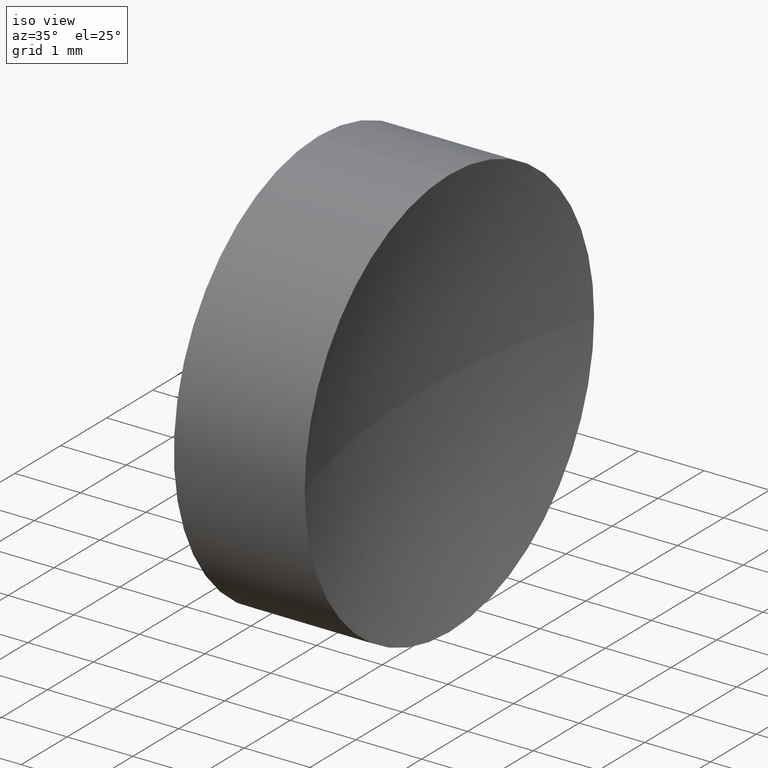
[diagram: clean part render]
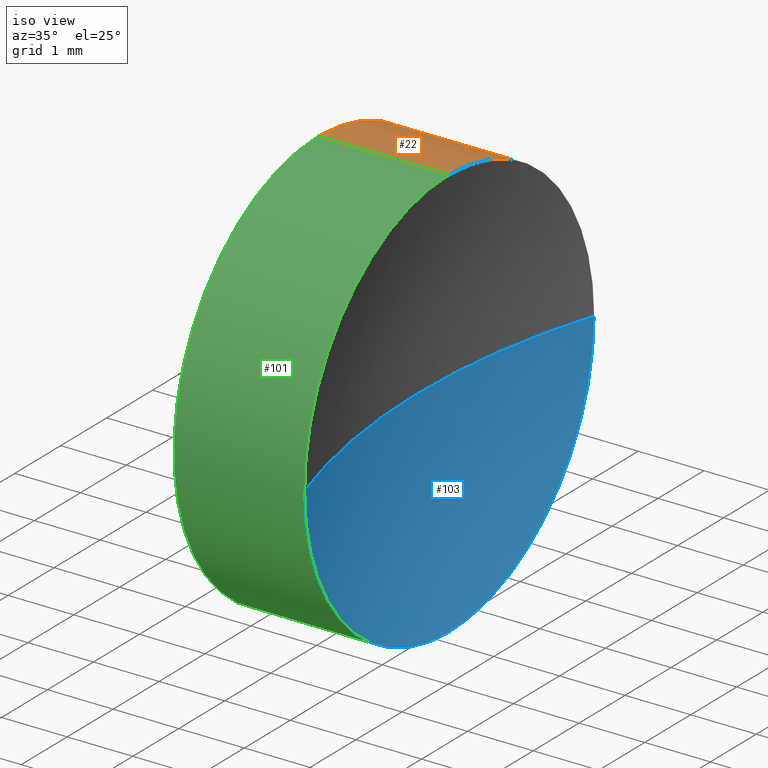
[diagram: same view with three faces highlighted in distinct colors, each labeled with its STEP entity id]
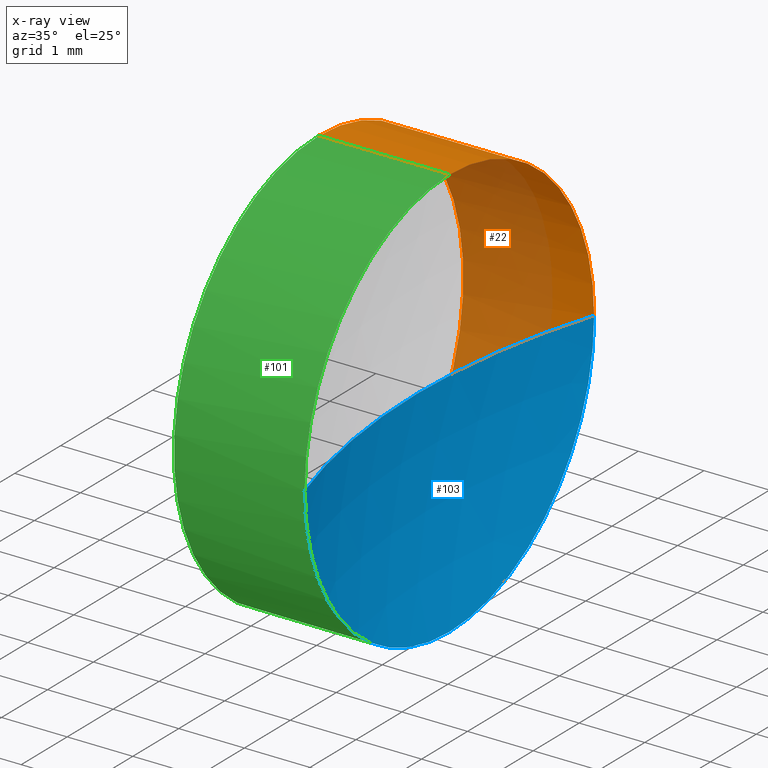
[diagram: x-ray of the same camera — body ghosted, the three highlighted faces saturated]
A machine part, iso view with three faces highlighted in distinct colors.
The next image is the same camera in x-ray (body ghosted, the three faces saturated) — at least one of them is partly hidden behind the body in this view.
Their STEP definitions:

[orange] entity #22 — the highlighted cylindrical surface (partial cylindrical patch) has radius 3.15 mm, axis along (-1, -0, -0).
#1 = ORIENTED_EDGE ( 'NONE', *, *, #137, .F. ) ;
#5 = DIRECTION ( 'NONE',  ( 0.0000000000000000000, 0.0000000000000000000, 1.000000000000000000 ) ) ;
#11 = VERTEX_POINT ( 'NONE', #36 ) ;
#12 = EDGE_CURVE ( 'NONE', #88, #11, #107, .T. ) ;
#13 = FACE_OUTER_BOUND ( 'NONE', #152, .T. ) ;
#16 = DIRECTION ( 'NONE',  ( 0.0000000000000000000, 0.0000000000000000000, 1.000000000000000000 ) ) ;
#20 = EDGE_CURVE ( 'NONE', #78, #88, #104, .T. ) ;
#22 = ADVANCED_FACE ( 'NONE', ( #13 ), #80, .T. ) ;
#23 = AXIS2_PLACEMENT_3D ( 'NONE', #51, #129, #5 ) ;
#25 = ORIENTED_EDGE ( 'NONE', *, *, #20, .T. ) ;
#27 = CARTESIAN_POINT ( 'NONE',  ( 24.30126090413694200, 13.03112609140304000, 0.0000000000000000000 ) ) ;
#32 = DIRECTION ( 'NONE',  ( 0.0000000000000000000, 0.0000000000000000000, 1.000000000000000000 ) ) ;
#36 = CARTESIAN_POINT ( 'NONE',  ( 22.30926883257449200, 13.03112609140304000, -3.149999999999998100 ) ) ;
#37 = CARTESIAN_POINT ( 'NONE',  ( 20.68403063513288800, 13.03112609140304000, 0.0000000000000000000 ) ) ;
#38 = VECTOR ( 'NONE', #123, 1000.000000000000000 ) ;
#45 = CARTESIAN_POINT ( 'NONE',  ( 20.68403063513288800, 13.03112609140304000, 3.149999999999999900 ) ) ;
#51 = CARTESIAN_POINT ( 'NONE',  ( 24.30126090413694200, 13.03112609140304000, 0.0000000000000000000 ) ) ;
#54 = DIRECTION ( 'NONE',  ( -1.000000000000000000, -0.0000000000000000000, -0.0000000000000000000 ) ) ;
#58 = EDGE_CURVE ( 'NONE', #70, #78, #98, .T. ) ;
#59 = DIRECTION ( 'NONE',  ( -1.000000000000000000, -0.0000000000000000000, -0.0000000000000000000 ) ) ;
#61 = AXIS2_PLACEMENT_3D ( 'NONE', #37, #66, #16 ) ;
#62 = LINE ( 'NONE', #45, #95 ) ;
#66 = DIRECTION ( 'NONE',  ( -1.000000000000000000, -0.0000000000000000000, -0.0000000000000000000 ) ) ;
#70 = VERTEX_POINT ( 'NONE', #100 ) ;
#78 = VERTEX_POINT ( 'NONE', #157 ) ;
#80 = CYLINDRICAL_SURFACE ( 'NONE', #61, 3.149999999999999900 ) ;
#83 = AXIS2_PLACEMENT_3D ( 'NONE', #163, #89, #32 ) ;
#84 = CARTESIAN_POINT ( 'NONE',  ( 20.68403063513288800, 13.03112609140304000, -3.149999999999999900 ) ) ;
#85 = ORIENTED_EDGE ( 'NONE', *, *, #58, .T. ) ;
#86 = CARTESIAN_POINT ( 'NONE',  ( 24.30126090413694200, 13.03112609140304000, -3.150000000000001200 ) ) ;
#88 = VERTEX_POINT ( 'NONE', #86 ) ;
#89 = DIRECTION ( 'NONE',  ( -1.000000000000000000, -0.0000000000000000000, -0.0000000000000000000 ) ) ;
#95 = VECTOR ( 'NONE', #59, 1000.000000000000000 ) ;
#96 = VERTEX_POINT ( 'NONE', #153 ) ;
#98 = CIRCLE ( 'NONE', #150, 3.150000000000001700 ) ;
#100 = CARTESIAN_POINT ( 'NONE',  ( 24.30126090413694200, 13.03112609140304000, 3.150000000000001200 ) ) ;
#104 = CIRCLE ( 'NONE', #23, 3.150000000000001700 ) ;
#107 = LINE ( 'NONE', #84, #38 ) ;
#121 = ORIENTED_EDGE ( 'NONE', *, *, #12, .T. ) ;
#123 = DIRECTION ( 'NONE',  ( -1.000000000000000000, -0.0000000000000000000, -0.0000000000000000000 ) ) ;
#129 = DIRECTION ( 'NONE',  ( -1.000000000000000000, -0.0000000000000000000, -0.0000000000000000000 ) ) ;
#135 = CIRCLE ( 'NONE', #83, 3.149999999999998100 ) ;
#137 = EDGE_CURVE ( 'NONE', #70, #96, #62, .T. ) ;
#146 = ORIENTED_EDGE ( 'NONE', *, *, #167, .F. ) ;
#150 = AXIS2_PLACEMENT_3D ( 'NONE', #27, #54, #156 ) ;
#152 = EDGE_LOOP ( 'NONE', ( #25, #121, #146, #1, #85 ) ) ;
#153 = CARTESIAN_POINT ( 'NONE',  ( 22.30926883257449200, 13.03112609140304000, 3.149999999999998100 ) ) ;
#156 = DIRECTION ( 'NONE',  ( 0.0000000000000000000, 0.0000000000000000000, 1.000000000000000000 ) ) ;
#157 = CARTESIAN_POINT ( 'NONE',  ( 24.30126090413694200, 16.18112609140304100, 3.857637417314157300E-016 ) ) ;
#163 = CARTESIAN_POINT ( 'NONE',  ( 22.30926883257449200, 13.03112609140304000, 0.0000000000000000000 ) ) ;
#167 = EDGE_CURVE ( 'NONE', #96, #11, #135, .T. ) ;

[blue] entity #103 — the highlighted spherical surface has radius 10.33 mm.
#2 = CARTESIAN_POINT ( 'NONE',  ( 34.13926883257448700, 13.03112609140304900, 0.0000000000000000000 ) ) ;
#4 = ORIENTED_EDGE ( 'NONE', *, *, #108, .F. ) ;
#5 = DIRECTION ( 'NONE',  ( 0.0000000000000000000, 0.0000000000000000000, 1.000000000000000000 ) ) ;
#8 = DIRECTION ( 'NONE',  ( 0.0000000000000000000, -1.000000000000000000, 0.0000000000000000000 ) ) ;
#14 = CIRCLE ( 'NONE', #125, 10.32999999999999800 ) ;
#20 = EDGE_CURVE ( 'NONE', #78, #88, #104, .T. ) ;
#23 = AXIS2_PLACEMENT_3D ( 'NONE', #51, #129, #5 ) ;
#24 = CARTESIAN_POINT ( 'NONE',  ( 34.13926883257448700, 13.03112609140304900, 0.0000000000000000000 ) ) ;
#26 = EDGE_CURVE ( 'NONE', #182, #69, #14, .T. ) ;
#30 = DIRECTION ( 'NONE',  ( 0.0000000000000000000, -1.000000000000000000, -1.224646799147353200E-016 ) ) ;
#43 = EDGE_CURVE ( 'NONE', #78, #69, #133, .T. ) ;
#44 = DIRECTION ( 'NONE',  ( -1.000000000000000000, -0.0000000000000000000, -0.0000000000000000000 ) ) ;
#48 = ORIENTED_EDGE ( 'NONE', *, *, #43, .T. ) ;
#51 = CARTESIAN_POINT ( 'NONE',  ( 24.30126090413694200, 13.03112609140304000, 0.0000000000000000000 ) ) ;
#52 = SPHERICAL_SURFACE ( 'NONE', #94, 10.32999999999999800 ) ;
#55 = DIRECTION ( 'NONE',  ( 0.0000000000000000000, 0.0000000000000000000, 1.000000000000000000 ) ) ;
#69 = VERTEX_POINT ( 'NONE', #72 ) ;
#72 = CARTESIAN_POINT ( 'NONE',  ( 23.80926883257448900, 13.03112609140304900, 0.0000000000000000000 ) ) ;
#74 = CARTESIAN_POINT ( 'NONE',  ( 24.30126090413694200, 13.03112609140304000, 0.0000000000000000000 ) ) ;
#78 = VERTEX_POINT ( 'NONE', #157 ) ;
#79 = CIRCLE ( 'NONE', #99, 3.150000000000001700 ) ;
#86 = CARTESIAN_POINT ( 'NONE',  ( 24.30126090413694200, 13.03112609140304000, -3.150000000000001200 ) ) ;
#88 = VERTEX_POINT ( 'NONE', #86 ) ;
#94 = AXIS2_PLACEMENT_3D ( 'NONE', #24, #55, #8 ) ;
#99 = AXIS2_PLACEMENT_3D ( 'NONE', #74, #44, #131 ) ;
#103 = ADVANCED_FACE ( 'NONE', ( #172 ), #52, .F. ) ;
#104 = CIRCLE ( 'NONE', #23, 3.150000000000001700 ) ;
#108 = EDGE_CURVE ( 'NONE', #88, #182, #79, .T. ) ;
#109 = EDGE_LOOP ( 'NONE', ( #136, #48, #155, #4 ) ) ;
#114 = CARTESIAN_POINT ( 'NONE',  ( 34.13926883257448700, 13.03112609140304900, 0.0000000000000000000 ) ) ;
#125 = AXIS2_PLACEMENT_3D ( 'NONE', #2, #126, #141 ) ;
#126 = DIRECTION ( 'NONE',  ( 0.0000000000000000000, 0.0000000000000000000, -1.000000000000000000 ) ) ;
#129 = DIRECTION ( 'NONE',  ( -1.000000000000000000, -0.0000000000000000000, -0.0000000000000000000 ) ) ;
#131 = DIRECTION ( 'NONE',  ( 0.0000000000000000000, 0.0000000000000000000, 1.000000000000000000 ) ) ;
#133 = CIRCLE ( 'NONE', #147, 10.32999999999999800 ) ;
#136 = ORIENTED_EDGE ( 'NONE', *, *, #20, .F. ) ;
#141 = DIRECTION ( 'NONE',  ( -1.000000000000000000, 0.0000000000000000000, 0.0000000000000000000 ) ) ;
#147 = AXIS2_PLACEMENT_3D ( 'NONE', #114, #174, #30 ) ;
#155 = ORIENTED_EDGE ( 'NONE', *, *, #26, .F. ) ;
#157 = CARTESIAN_POINT ( 'NONE',  ( 24.30126090413694200, 16.18112609140304100, 3.857637417314157300E-016 ) ) ;
#172 = FACE_OUTER_BOUND ( 'NONE', #109, .T. ) ;
#174 = DIRECTION ( 'NONE',  ( 0.0000000000000000000, -1.224646799147353200E-016, 1.000000000000000000 ) ) ;
#179 = CARTESIAN_POINT ( 'NONE',  ( 24.30126090413694200, 9.881126091403045200, 0.0000000000000000000 ) ) ;
#182 = VERTEX_POINT ( 'NONE', #179 ) ;

[green] entity #101 — the highlighted cylindrical surface (partial cylindrical patch) has radius 3.15 mm, axis along (-1, -0, -0).
#11 = VERTEX_POINT ( 'NONE', #36 ) ;
#12 = EDGE_CURVE ( 'NONE', #88, #11, #107, .T. ) ;
#36 = CARTESIAN_POINT ( 'NONE',  ( 22.30926883257449200, 13.03112609140304000, -3.149999999999998100 ) ) ;
#38 = VECTOR ( 'NONE', #123, 1000.000000000000000 ) ;
#39 = EDGE_CURVE ( 'NONE', #182, #70, #60, .T. ) ;
#40 = CARTESIAN_POINT ( 'NONE',  ( 24.30126090413694200, 13.03112609140304000, 0.0000000000000000000 ) ) ;
#41 = DIRECTION ( 'NONE',  ( -1.000000000000000000, -0.0000000000000000000, -0.0000000000000000000 ) ) ;
#44 = DIRECTION ( 'NONE',  ( -1.000000000000000000, -0.0000000000000000000, -0.0000000000000000000 ) ) ;
#45 = CARTESIAN_POINT ( 'NONE',  ( 20.68403063513288800, 13.03112609140304000, 3.149999999999999900 ) ) ;
#46 = EDGE_LOOP ( 'NONE', ( #106, #173, #111, #149, #122 ) ) ;
#56 = DIRECTION ( 'NONE',  ( -1.000000000000000000, -0.0000000000000000000, -0.0000000000000000000 ) ) ;
#59 = DIRECTION ( 'NONE',  ( -1.000000000000000000, -0.0000000000000000000, -0.0000000000000000000 ) ) ;
#60 = CIRCLE ( 'NONE', #134, 3.150000000000001700 ) ;
#62 = LINE ( 'NONE', #45, #95 ) ;
#64 = CIRCLE ( 'NONE', #71, 3.149999999999998100 ) ;
#70 = VERTEX_POINT ( 'NONE', #100 ) ;
#71 = AXIS2_PLACEMENT_3D ( 'NONE', #140, #138, #175 ) ;
#74 = CARTESIAN_POINT ( 'NONE',  ( 24.30126090413694200, 13.03112609140304000, 0.0000000000000000000 ) ) ;
#77 = EDGE_CURVE ( 'NONE', #11, #96, #64, .T. ) ;
#79 = CIRCLE ( 'NONE', #99, 3.150000000000001700 ) ;
#84 = CARTESIAN_POINT ( 'NONE',  ( 20.68403063513288800, 13.03112609140304000, -3.149999999999999900 ) ) ;
#86 = CARTESIAN_POINT ( 'NONE',  ( 24.30126090413694200, 13.03112609140304000, -3.150000000000001200 ) ) ;
#88 = VERTEX_POINT ( 'NONE', #86 ) ;
#95 = VECTOR ( 'NONE', #59, 1000.000000000000000 ) ;
#96 = VERTEX_POINT ( 'NONE', #153 ) ;
#99 = AXIS2_PLACEMENT_3D ( 'NONE', #74, #44, #131 ) ;
#100 = CARTESIAN_POINT ( 'NONE',  ( 24.30126090413694200, 13.03112609140304000, 3.150000000000001200 ) ) ;
#101 = ADVANCED_FACE ( 'NONE', ( #117 ), #128, .T. ) ;
#106 = ORIENTED_EDGE ( 'NONE', *, *, #12, .F. ) ;
#107 = LINE ( 'NONE', #84, #38 ) ;
#108 = EDGE_CURVE ( 'NONE', #88, #182, #79, .T. ) ;
#110 = AXIS2_PLACEMENT_3D ( 'NONE', #148, #56, #164 ) ;
#111 = ORIENTED_EDGE ( 'NONE', *, *, #39, .T. ) ;
#112 = DIRECTION ( 'NONE',  ( 0.0000000000000000000, 0.0000000000000000000, 1.000000000000000000 ) ) ;
#117 = FACE_OUTER_BOUND ( 'NONE', #46, .T. ) ;
#122 = ORIENTED_EDGE ( 'NONE', *, *, #77, .F. ) ;
#123 = DIRECTION ( 'NONE',  ( -1.000000000000000000, -0.0000000000000000000, -0.0000000000000000000 ) ) ;
#128 = CYLINDRICAL_SURFACE ( 'NONE', #110, 3.149999999999999900 ) ;
#131 = DIRECTION ( 'NONE',  ( 0.0000000000000000000, 0.0000000000000000000, 1.000000000000000000 ) ) ;
#134 = AXIS2_PLACEMENT_3D ( 'NONE', #40, #41, #112 ) ;
#137 = EDGE_CURVE ( 'NONE', #70, #96, #62, .T. ) ;
#138 = DIRECTION ( 'NONE',  ( -1.000000000000000000, -0.0000000000000000000, -0.0000000000000000000 ) ) ;
#140 = CARTESIAN_POINT ( 'NONE',  ( 22.30926883257449200, 13.03112609140304000, 0.0000000000000000000 ) ) ;
#148 = CARTESIAN_POINT ( 'NONE',  ( 20.68403063513288800, 13.03112609140304000, 0.0000000000000000000 ) ) ;
#149 = ORIENTED_EDGE ( 'NONE', *, *, #137, .T. ) ;
#153 = CARTESIAN_POINT ( 'NONE',  ( 22.30926883257449200, 13.03112609140304000, 3.149999999999998100 ) ) ;
#164 = DIRECTION ( 'NONE',  ( 0.0000000000000000000, 0.0000000000000000000, 1.000000000000000000 ) ) ;
#173 = ORIENTED_EDGE ( 'NONE', *, *, #108, .T. ) ;
#175 = DIRECTION ( 'NONE',  ( 0.0000000000000000000, 0.0000000000000000000, 1.000000000000000000 ) ) ;
#179 = CARTESIAN_POINT ( 'NONE',  ( 24.30126090413694200, 9.881126091403045200, 0.0000000000000000000 ) ) ;
#182 = VERTEX_POINT ( 'NONE', #179 ) ;